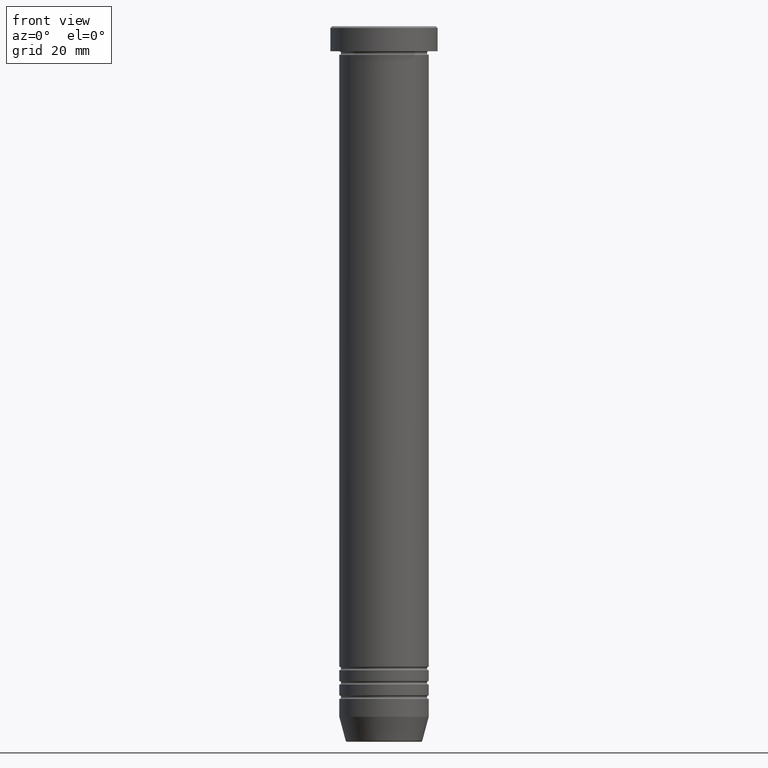
[diagram: clean part render]
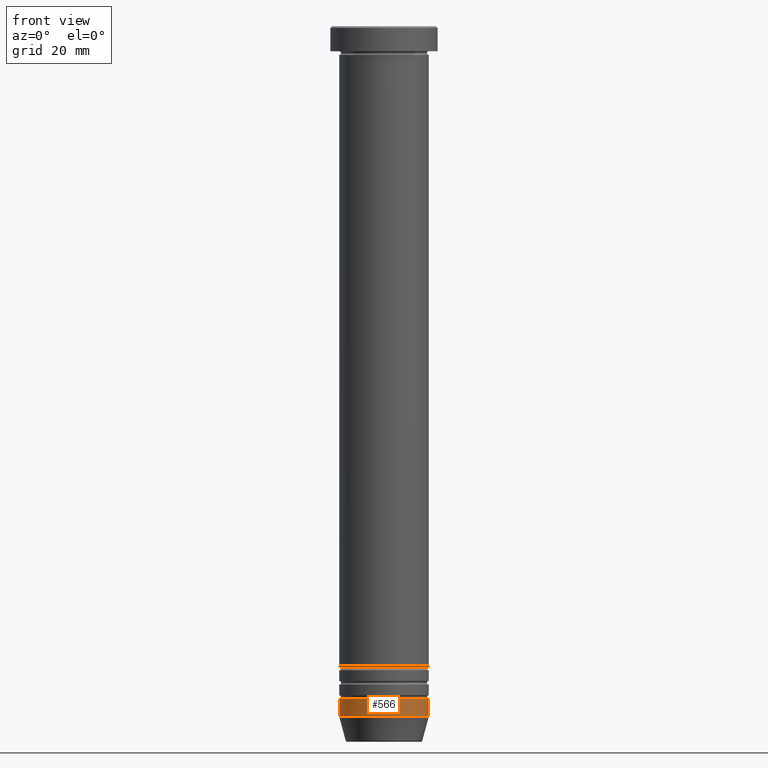
[diagram: same view with one face highlighted and labeled with its STEP entity id]
A machine part, front view. The second image highlights one B-rep face of the part: STEP entity #566.
In plain terms, the highlighted cylindrical surface (partial cylindrical patch) has radius 12.5 mm, axis along (-0, -0, 1).
Its self-contained STEP definition (entity closure, byte-faithful):
#15 = DIRECTION ( 'NONE',  ( -0.000000000000000000, -0.000000000000000000, 1.000000000000000000 ) ) ;
#34 = DIRECTION ( 'NONE',  ( -0.000000000000000000, -0.000000000000000000, 1.000000000000000000 ) ) ;
#52 = EDGE_CURVE ( 'NONE', #544, #739, #646, .T. ) ;
#53 = ORIENTED_EDGE ( 'NONE', *, *, #528, .T. ) ;
#68 = ORIENTED_EDGE ( 'NONE', *, *, #52, .T. ) ;
#138 = AXIS2_PLACEMENT_3D ( 'NONE', #571, #501, #560 ) ;
#171 = EDGE_CURVE ( 'NONE', #769, #848, #770, .T. ) ;
#318 = CARTESIAN_POINT ( 'NONE',  ( -12.50000000000000000, 1.530808498934191521E-15, -193.0000000000000000 ) ) ;
#368 = CARTESIAN_POINT ( 'NONE',  ( 12.50000000000000000, 0.000000000000000000, -193.0000000000000000 ) ) ;
#405 = DIRECTION ( 'NONE',  ( -0.000000000000000000, -0.000000000000000000, 1.000000000000000000 ) ) ;
#418 = CYLINDRICAL_SURFACE ( 'NONE', #428, 12.50000000000000000 ) ;
#428 = AXIS2_PLACEMENT_3D ( 'NONE', #743, #15, #662 ) ;
#501 = DIRECTION ( 'NONE',  ( -0.000000000000000000, -0.000000000000000000, 1.000000000000000000 ) ) ;
#528 = EDGE_CURVE ( 'NONE', #739, #848, #815, .T. ) ;
#534 = CARTESIAN_POINT ( 'NONE',  ( -12.50000000000000000, 1.530808498934191521E-15, -188.0000000000000000 ) ) ;
#544 = VERTEX_POINT ( 'NONE', #318 ) ;
#560 = DIRECTION ( 'NONE',  ( 1.000000000000000000, 0.000000000000000000, 0.000000000000000000 ) ) ;
#566 = ADVANCED_FACE ( 'NONE', ( #823 ), #418, .T. ) ;
#571 = CARTESIAN_POINT ( 'NONE',  ( 0.000000000000000000, 0.000000000000000000, -193.0000000000000000 ) ) ;
#592 = CARTESIAN_POINT ( 'NONE',  ( 0.000000000000000000, 0.000000000000000000, -188.0000000000000000 ) ) ;
#639 = LINE ( 'NONE', #718, #788 ) ;
#646 = CIRCLE ( 'NONE', #138, 12.50000000000000000 ) ;
#662 = DIRECTION ( 'NONE',  ( 1.000000000000000000, 0.000000000000000000, 0.000000000000000000 ) ) ;
#679 = ORIENTED_EDGE ( 'NONE', *, *, #948, .F. ) ;
#718 = CARTESIAN_POINT ( 'NONE',  ( -12.50000000000000000, 1.530808498934191521E-15, 0.000000000000000000 ) ) ;
#722 = DIRECTION ( 'NONE',  ( -0.000000000000000000, -0.000000000000000000, 1.000000000000000000 ) ) ;
#739 = VERTEX_POINT ( 'NONE', #368 ) ;
#743 = CARTESIAN_POINT ( 'NONE',  ( 0.000000000000000000, 0.000000000000000000, 0.000000000000000000 ) ) ;
#769 = VERTEX_POINT ( 'NONE', #534 ) ;
#770 = CIRCLE ( 'NONE', #967, 12.50000000000000000 ) ;
#788 = VECTOR ( 'NONE', #722, 1000.000000000000000 ) ;
#802 = ORIENTED_EDGE ( 'NONE', *, *, #171, .F. ) ;
#805 = CARTESIAN_POINT ( 'NONE',  ( 12.50000000000000000, 0.000000000000000000, 0.000000000000000000 ) ) ;
#815 = LINE ( 'NONE', #805, #1001 ) ;
#823 = FACE_OUTER_BOUND ( 'NONE', #1039, .T. ) ;
#848 = VERTEX_POINT ( 'NONE', #960 ) ;
#948 = EDGE_CURVE ( 'NONE', #544, #769, #639, .T. ) ;
#960 = CARTESIAN_POINT ( 'NONE',  ( 12.50000000000000000, 0.000000000000000000, -188.0000000000000000 ) ) ;
#967 = AXIS2_PLACEMENT_3D ( 'NONE', #592, #34, #1023 ) ;
#1001 = VECTOR ( 'NONE', #405, 1000.000000000000000 ) ;
#1023 = DIRECTION ( 'NONE',  ( 1.000000000000000000, 0.000000000000000000, 0.000000000000000000 ) ) ;
#1039 = EDGE_LOOP ( 'NONE', ( #679, #68, #53, #802 ) ) ;